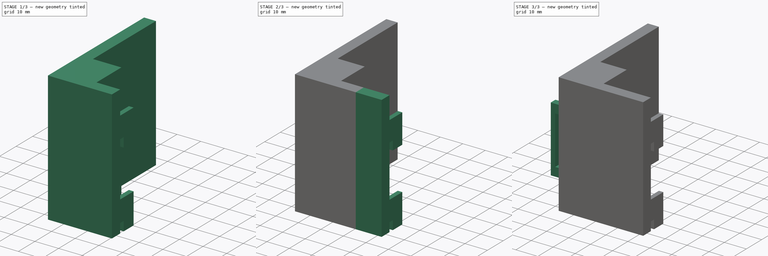
[diagram: build sequence overview — one tinted view per stage of 3, left to right]
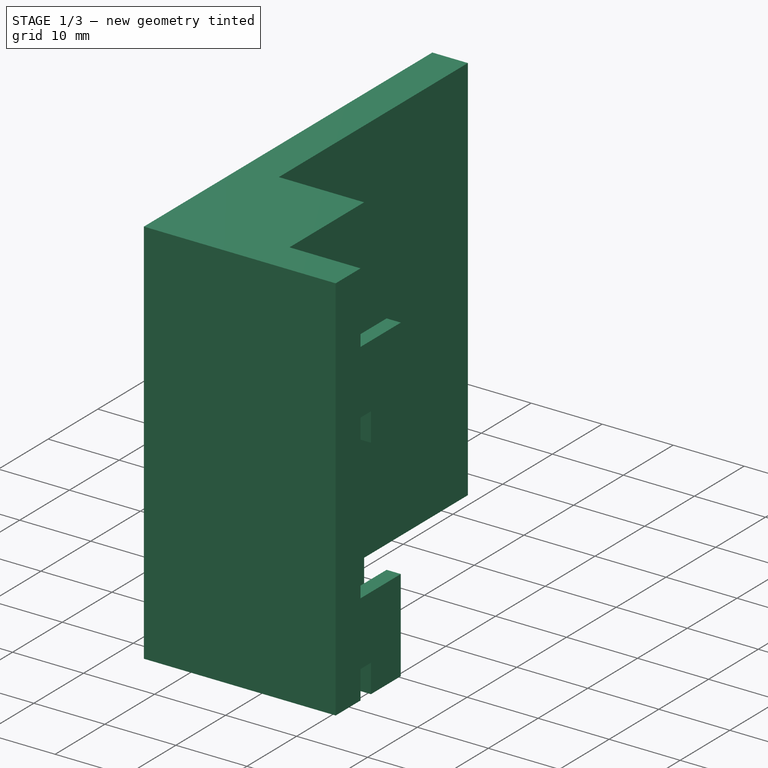
[diagram: stage 1 of 3 — iso view after this stage's code; geometry added in this stage tinted green]
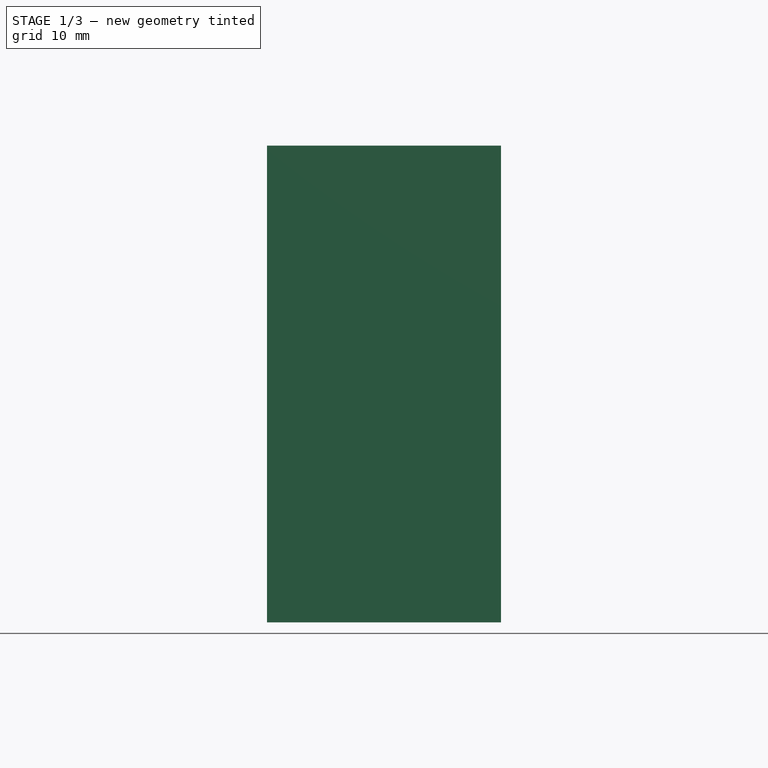
[diagram: stage 1 of 3 — front view after this stage's code; geometry added in this stage tinted green]
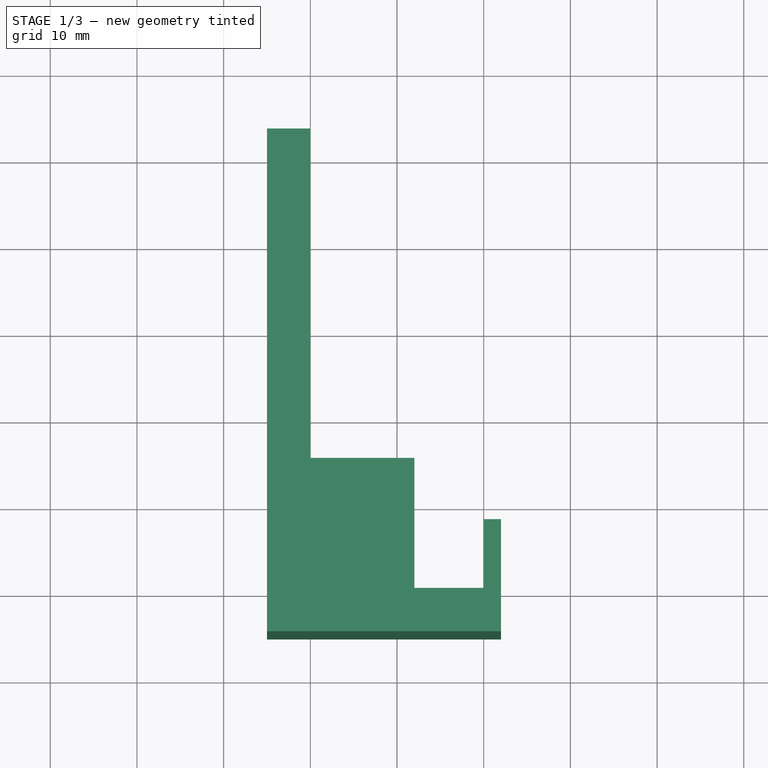
[diagram: stage 1 of 3 — top view after this stage's code; geometry added in this stage tinted green]
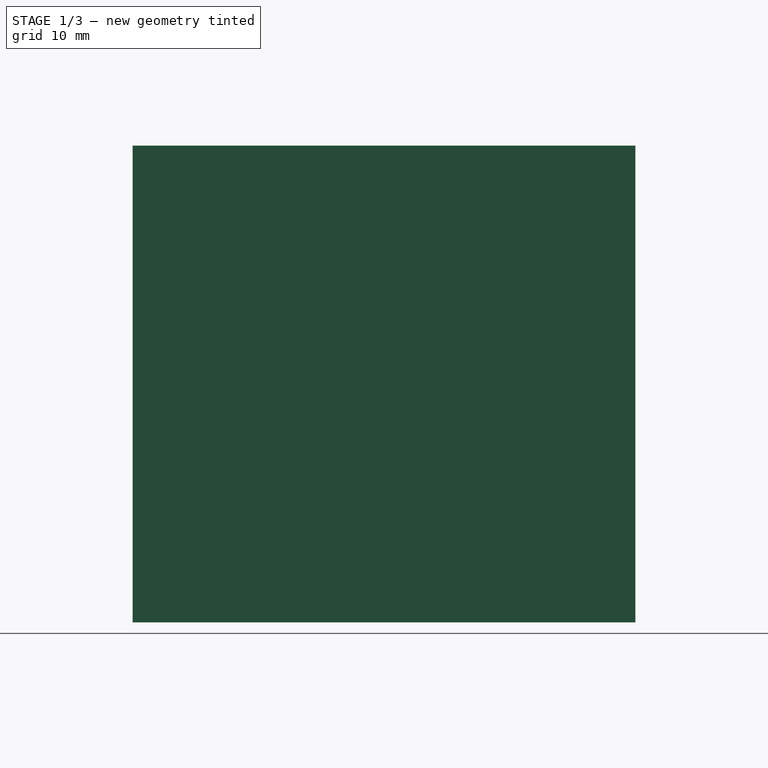
[diagram: stage 1 of 3 — right view after this stage's code; geometry added in this stage tinted green]
FCSTD DOCUMENT  (FreeCAD 0.19R24291 (Git))
Label: rack_rail_grabbers_velcro_tie
License: All rights reserved
LicenseURL: http://en.wikipedia.org/wiki/All_rights_reserved
objects: Sketcher::SketchObject×4, PartDesign::Pad×4, PartDesign::LinearPattern×2, PartDesign::Plane×1, PartDesign::MultiTransform×1, PartDesign::Body×1, App::Part×1
note: 17 computed .brp shape members not serialized (recipe doc carries the construction recipe); baked Part::Feature solids carry a one-line shape summary decoded from their .brp

FEATURE [Sketcher::SketchObject] Sketch004
  FullyConstrained = true
  MapMode = 5
  Support = -> [XY_Plane001]
  sketch-geometry (8):
    g0: LineSegment StartX=0 StartY=-5 StartZ=0 EndX=-25 EndY=-5 EndZ=0
    g1: LineSegment StartX=-25 StartY=-5 StartZ=0 EndX=-25 EndY=53 EndZ=0
    g2: LineSegment StartX=-25 StartY=53 StartZ=0 EndX=-20 EndY=53 EndZ=0
    g3: LineSegment StartX=-20 StartY=53 StartZ=0 EndX=-20 EndY=15 EndZ=0
    g4: LineSegment StartX=-20 StartY=15 StartZ=0 EndX=-8 EndY=15 EndZ=0
    g5: LineSegment StartX=-8 StartY=15 StartZ=0 EndX=-8 EndY=0 EndZ=0
    g6: LineSegment StartX=-8 StartY=0 StartZ=0 EndX=0 EndY=0 EndZ=0
    g7: LineSegment StartX=0 StartY=0 StartZ=0 EndX=0 EndY=-5 EndZ=0
  constraints (23):
    c: Horizontal(g0)
    c: Coincident(g0,g1)
    c: Vertical(g1)
    c: Coincident(g1,g2)
    c: Horizontal(g2)
    c: Coincident(g2,g3)
    c: Vertical(g3)
    c: Coincident(g3,g4)
    c: Horizontal(g4)
    c: Coincident(g4,g5)
    c: Vertical(g5)
    c: Coincident(g5,g6)
    c: Horizontal(g6)
    c: Coincident(g6,g7)
    c: Vertical(g7)
    c: Coincident(g7,g0)
    c: DistanceX(g2,g2) = 5
    c: DistanceX(g4,g4) = 12
    c: DistanceX(g6,g6) = 8
    c: Coincident(g6,g-1)
    c: DistanceY(g5,g5) = 15
    c: DistanceY(g3,g3) = 38
    c: DistanceY(g7,g7) = 5
FEATURE [PartDesign::Pad] Pad
  Direction = (1,1,1)
  Length = 55
  Length2 = 100
  Profile = -> Sketch004
  Reversed = true
  Type = 0
FEATURE [Sketcher::SketchObject] Sketch
  ExternalGeometry = -> [Sketch004]
  FullyConstrained = true
  MapMode = 5
  Placement = pos=(0,0,0) rot=(0.57735,0.57735,0.57735;2.0944rad)
  Support = -> [Pad]
  expr: Constraints[15] = 17mm - .Constraints.notch_depth
  sketch-geometry (17):
    g0: LineSegment StartX=-5 StartY=-55 StartZ=0 EndX=0 EndY=-55 EndZ=0
    g1: LineSegment StartX=-5 StartY=0 StartZ=0 EndX=-5 EndY=-55 EndZ=0
    g2: LineSegment StartX=0 StartY=-10 StartZ=0 EndX=8.1 EndY=-10 EndZ=0
    g3: LineSegment StartX=8.1 StartY=-10 StartZ=0 EndX=8.1 EndY=-23 EndZ=0
    g4: LineSegment StartX=8.1 StartY=-23 StartZ=0 EndX=2.1 EndY=-23 EndZ=0
    g5: LineSegment StartX=2.1 StartY=-23 StartZ=0 EndX=2.1 EndY=-19 EndZ=0
    g6: LineSegment StartX=2.1 StartY=-19 StartZ=0 EndX=0 EndY=-19 EndZ=0
    g7: LineSegment StartX=0 StartY=-42 StartZ=0 EndX=8.1 EndY=-42 EndZ=0
    g8: LineSegment StartX=8.1 StartY=-42 StartZ=0 EndX=8.1 EndY=-55 EndZ=0
    g9: LineSegment StartX=8.1 StartY=-55 StartZ=0 EndX=2.1 EndY=-55 EndZ=0
    g10: LineSegment StartX=2.1 StartY=-55 StartZ=0 EndX=2.1 EndY=-51 EndZ=0
    g11: LineSegment StartX=2.1 StartY=-51 StartZ=0 EndX=0 EndY=-51 EndZ=0
    g12: LineSegment StartX=0 StartY=-10 StartZ=0 EndX=0 EndY=-42 EndZ=0
    g13: LineSegment StartX=0 StartY=-19 StartZ=0 EndX=0 EndY=-42 EndZ=0
    g14: LineSegment StartX=0 StartY=-10 StartZ=0 EndX=0 EndY=0 EndZ=0
    g15: LineSegment StartX=-5 StartY=0 StartZ=0 EndX=0 EndY=0 EndZ=0
    g16: LineSegment StartX=0 StartY=-55 StartZ=0 EndX=0 EndY=-51 EndZ=0
  constraints (49):
    c: PointOnObject(g0,g-2)
    c: PointOnObject(g2,g-2)
    c: Coincident(g1,g0)
    c: Vertical(g1)
    c: Horizontal(g2)
    c: Coincident(g2,g3)
    c: Vertical(g3)
    c: Coincident(g3,g4)
    c: Horizontal(g4)
    c: Coincident(g4,g5)
    c: Vertical(g5)
    c: Coincident(g5,g6)
    c: Horizontal(g6)
    c: DistanceY(g5,g5) = 4  'notch_depth'
    c: DistanceX(g6,g6) = 2.1
    c: DistanceY(g3,g3) = 13
    c: DistanceX(g4,g4) = 6
    c: Vertical(g6,g2)
    c: Horizontal(g7)
    c: Coincident(g7,g8)
    c: Vertical(g8)
    c: Coincident(g8,g9)
    c: Horizontal(g9)
    c: Coincident(g9,g10)
    c: Vertical(g10)
    c: Coincident(g10,g11)
    c: Horizontal(g11)
    c: Equal(g5,g10) = 4  'notch_depth'
    c: Equal(g6,g11) = 3
    c: Equal(g3,g8) = 13
    c: Equal(g4,g9) = 6
    c: Vertical(g11,g7)
    c: Coincident(g2,g12)
    c: Coincident(g7,g12)
    c: Distance(g12) = 32
    c: Vertical(g12)
    c: Coincident(g13,g6)
    c: Coincident(g13,g7)
    c: Coincident(g14,g2)
    c: Coincident(g15,g1)
    c: Coincident(g15,g14)
    c: Horizontal(g0)
    c: Coincident(g14,g-1)
    c: Coincident(g16,g0)
    c: Coincident(g16,g11)
    c: Horizontal(g0,g9)
    c: DistanceY(g14,g14) = 10
    c: Coincident(g1,g-3)
    c: DistanceY(g1,g1) = 55  'height'
FEATURE [PartDesign::Pad] Pad003
  BaseFeature = -> Pad
  Direction = (1,1,1)
  Length = 2
  Length2 = 100
  Profile = -> Sketch
  Type = 0
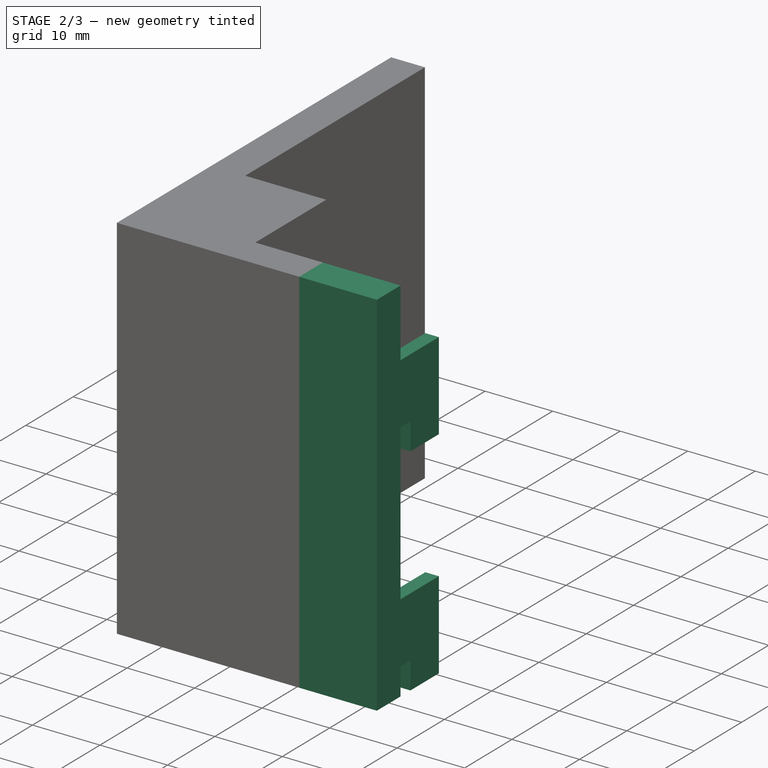
[diagram: stage 2 of 3 — iso view after this stage's code; geometry added in this stage tinted green]
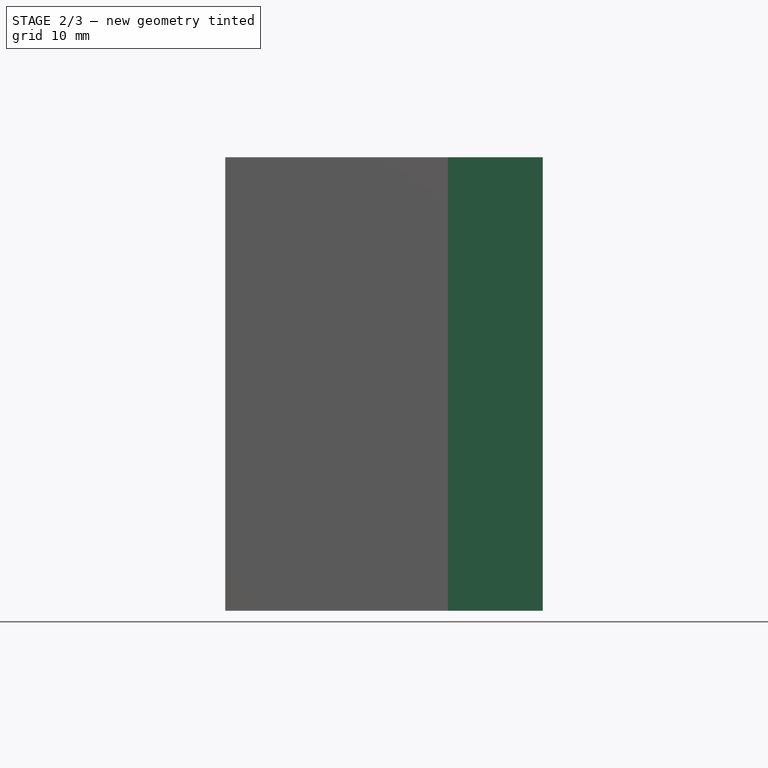
[diagram: stage 2 of 3 — front view after this stage's code; geometry added in this stage tinted green]
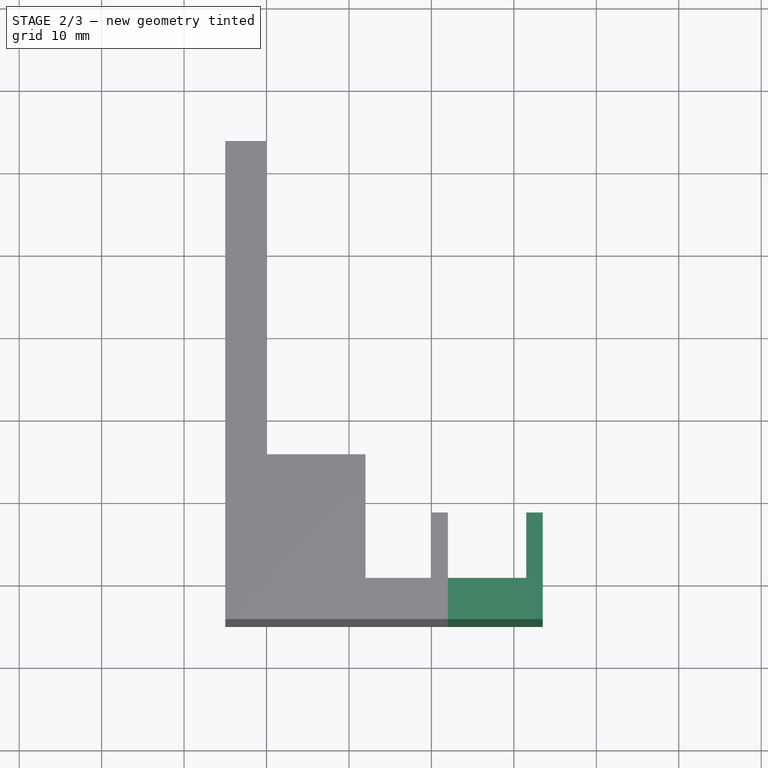
[diagram: stage 2 of 3 — top view after this stage's code; geometry added in this stage tinted green]
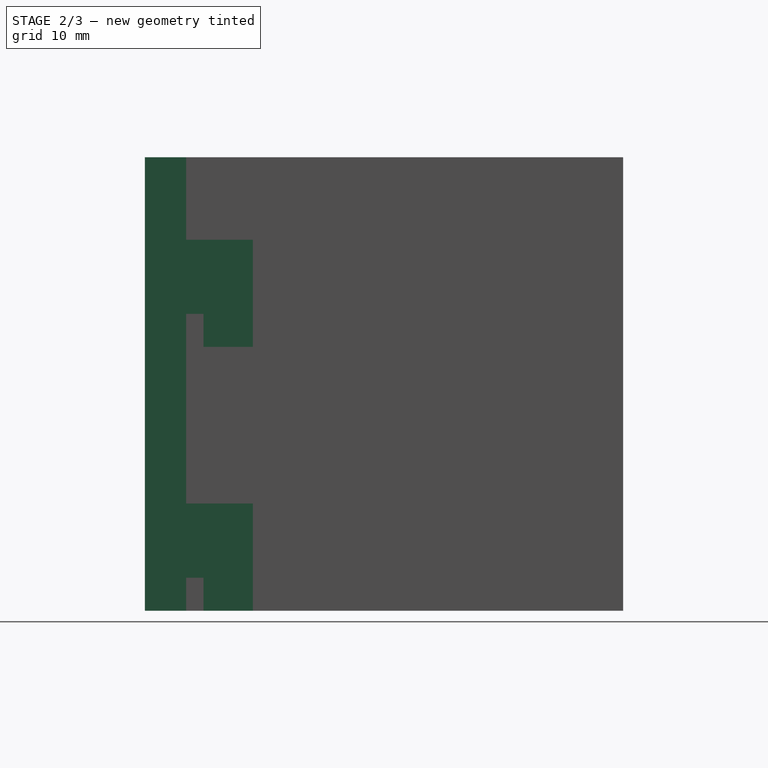
[diagram: stage 2 of 3 — right view after this stage's code; geometry added in this stage tinted green]
FEATURE [Sketcher::SketchObject] Sketch005
  ExternalGeometry = -> [Pad003]
  FullyConstrained = true
  MapMode = 5
  Placement = pos=(2,0,0) rot=(0.57735,0.57735,0.57735;2.0944rad)
  Support = -> [Pad003]
  sketch-geometry (4):
    g0: LineSegment StartX=0 StartY=0 StartZ=0 EndX=-5 EndY=0 EndZ=0
    g1: LineSegment StartX=-5 StartY=0 StartZ=0 EndX=-5 EndY=-55 EndZ=0
    g2: LineSegment StartX=-5 StartY=-55 StartZ=0 EndX=0 EndY=-55 EndZ=0
    g3: LineSegment StartX=0 StartY=-55 StartZ=0 EndX=0 EndY=0 EndZ=0
  constraints (10):
    c: Coincident(g0,g1)
    c: Coincident(g1,g2)
    c: Coincident(g2,g3)
    c: Coincident(g3,g0)
    c: Horizontal(g0)
    c: Horizontal(g2)
    c: Vertical(g1)
    c: Vertical(g3)
    c: Coincident(g0,g-1)
    c: Coincident(g1,g-4)
FEATURE [PartDesign::Pad] Pad004
  BaseFeature = -> Pad003
  Direction = (1,1,1)
  Length = 9.5
  Length2 = 100
  Profile = -> Sketch005
  Type = 0
FEATURE [PartDesign::LinearPattern] LinearPattern
  BaseFeature = -> Pad004
  Direction = -> X_Axis001
  Length = 11.5
  Occurrences = 2
  Originals = -> [Pad003]
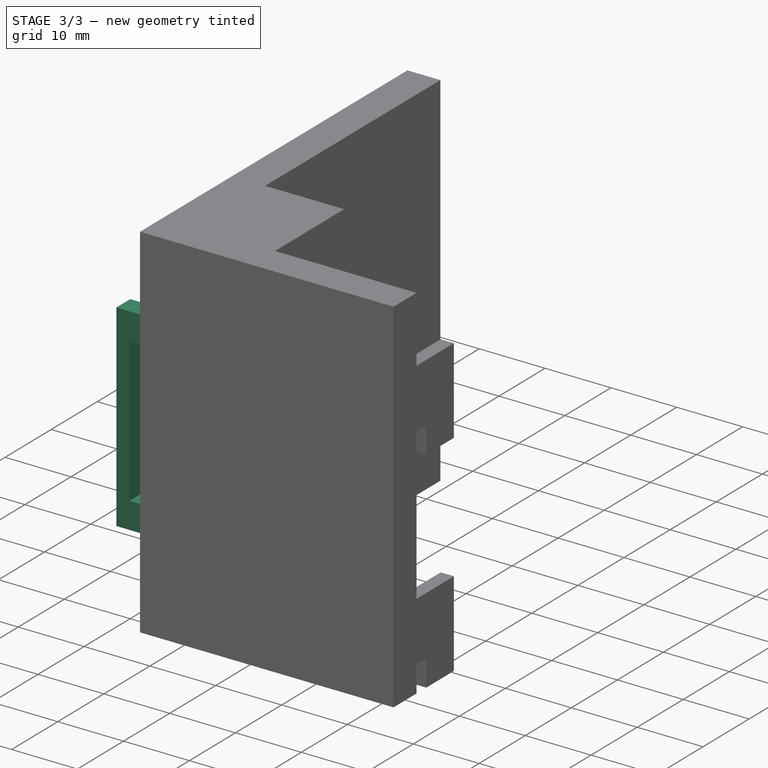
[diagram: stage 3 of 3 — iso view after this stage's code; geometry added in this stage tinted green]
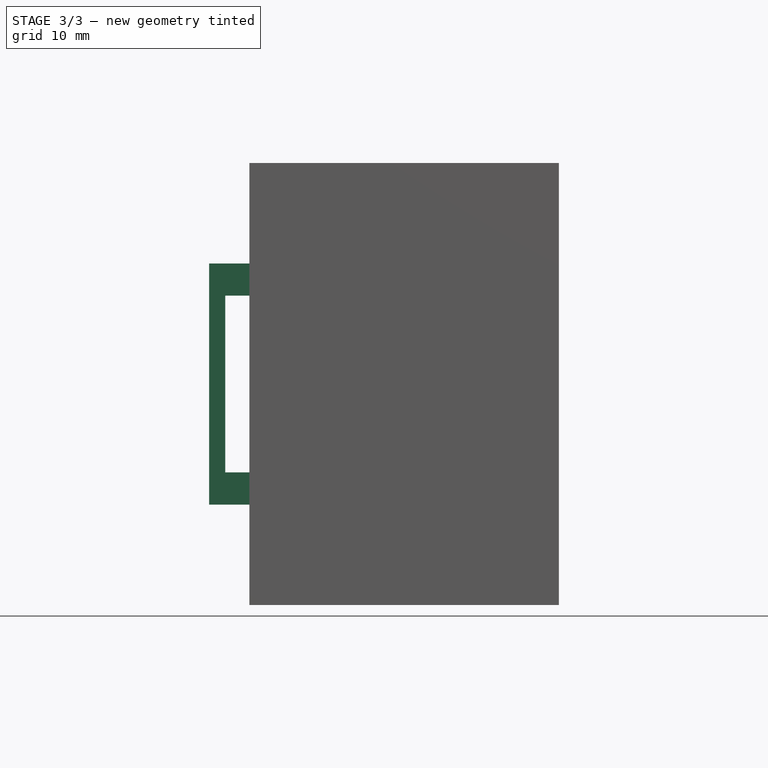
[diagram: stage 3 of 3 — front view after this stage's code; geometry added in this stage tinted green]
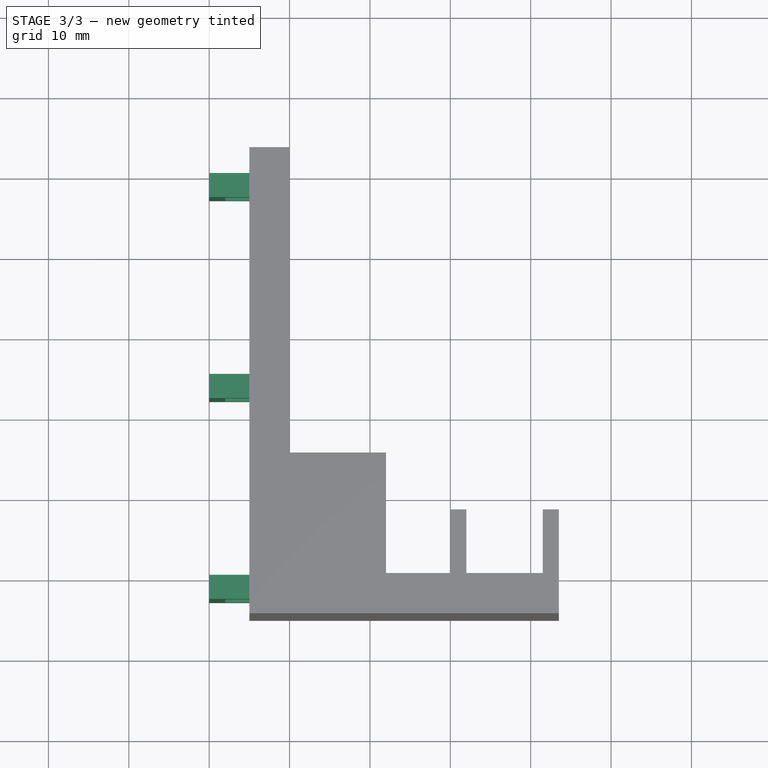
[diagram: stage 3 of 3 — top view after this stage's code; geometry added in this stage tinted green]
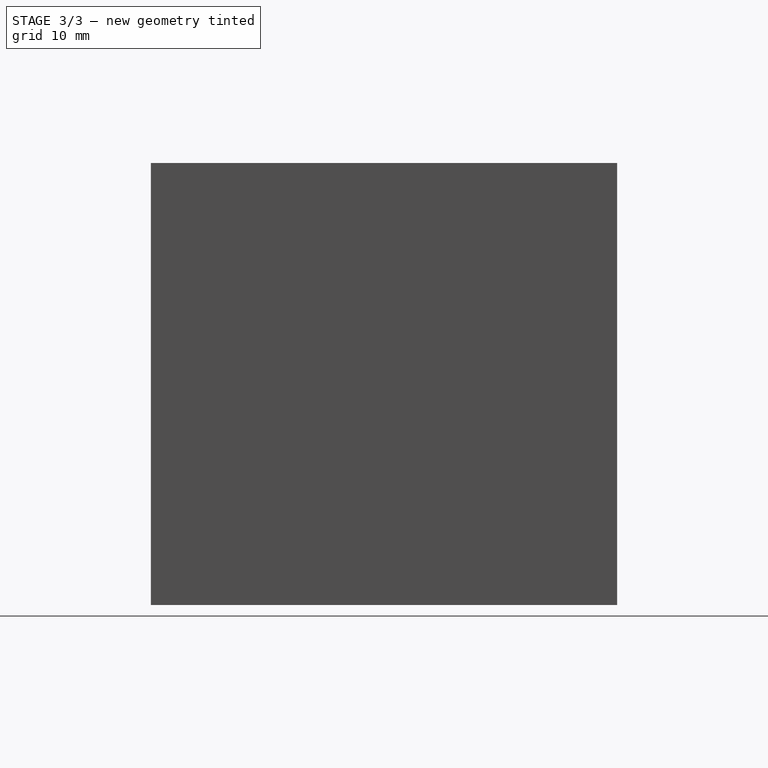
[diagram: stage 3 of 3 — right view after this stage's code; geometry added in this stage tinted green]
FEATURE [PartDesign::Plane] DatumPlane
  Length = 62.6491
  MapMode = 5
  Placement = pos=(0,0,0) rot=(1,0,0;1.5708rad)
  ResizeMode = 0
  Support = -> [XZ_Plane001]
  Width = 92.6491
FEATURE [Sketcher::SketchObject] Sketch006
  ExternalGeometry = -> [LinearPattern]
  FullyConstrained = true
  MapMode = 5
  Placement = pos=(0,0,0) rot=(1,0,0;1.5708rad)
  Support = -> [DatumPlane]
  sketch-geometry (9):
    g0: LineSegment StartX=-25 StartY=-12.5 StartZ=0 EndX=-30 EndY=-12.5 EndZ=0
    g1: LineSegment StartX=-30 StartY=-12.5 StartZ=0 EndX=-30 EndY=-42.5 EndZ=0
    g2: LineSegment StartX=-30 StartY=-42.5 StartZ=0 EndX=-25 EndY=-42.5 EndZ=0
    g3: LineSegment StartX=-25 StartY=-42.5 StartZ=0 EndX=-25 EndY=-38.5 EndZ=0
    g4: LineSegment StartX=-25 StartY=-38.5 StartZ=0 EndX=-28 EndY=-38.5 EndZ=0
    g5: LineSegment StartX=-28 StartY=-38.5 StartZ=0 EndX=-28 EndY=-16.5 EndZ=0
    g6: LineSegment StartX=-28 StartY=-16.5 StartZ=0 EndX=-25 EndY=-16.5 EndZ=0
    g7: LineSegment StartX=-25 StartY=-16.5 StartZ=0 EndX=-25 EndY=-12.5 EndZ=0
    g8: GeomPoint X=-25 Y=-27.5 Z=0
  constraints (24):
    c: PointOnObject(g0,g-3)
    c: Horizontal(g0)
    c: Coincident(g0,g1)
    c: Vertical(g1)
    c: Coincident(g1,g2)
    c: PointOnObject(g2,g-3)
    c: Horizontal(g2)
    c: Coincident(g2,g3)
    c: PointOnObject(g3,g-3)
    c: Coincident(g3,g4)
    c: Horizontal(g4)
    c: Coincident(g4,g5)
    c: Vertical(g5)
    c: Coincident(g5,g6)
    c: Horizontal(g6)
    c: Coincident(g6,g7)
    c: Coincident(g7,g0)
    c: Equal(g3,g7)
    c: DistanceY(g5,g5) = 22
    c: DistanceY(g7,g7) = 4
    c: DistanceX(g1,g4) = 2
    c: Symmetric(g3,g6,g8)
    c: Symmetric(g-3,g-3,g8)
    c: DistanceX(g4,g4) = 3
FEATURE [PartDesign::Pad] Pad005
  BaseFeature = -> LinearPattern
  Direction = (1,1,1)
  Length = 3
  Length2 = 100
  Profile = -> Sketch006
  Type = 0
FEATURE [PartDesign::LinearPattern] LinearPattern001
  Direction = -> Y_Axis001
  Length = 50
  Occurrences = 3
FEATURE [PartDesign::MultiTransform] MultiTransform
  BaseFeature = -> Pad005
  Originals = -> [Pad005]
  Transformations = -> [LinearPattern001]
FEATURE [PartDesign::Body] Body
  Group = -> [Sketch004,Pad,Sketch,Pad003,Sketch005,Pad004,LinearPattern,DatumPlane,Sketch006,Pad005,MultiTransform,LinearPattern001]
  Origin = -> Origin001
  Tip = -> MultiTransform
FEATURE [App::Part] Part
  Group = -> [Body]
  Origin = -> Origin
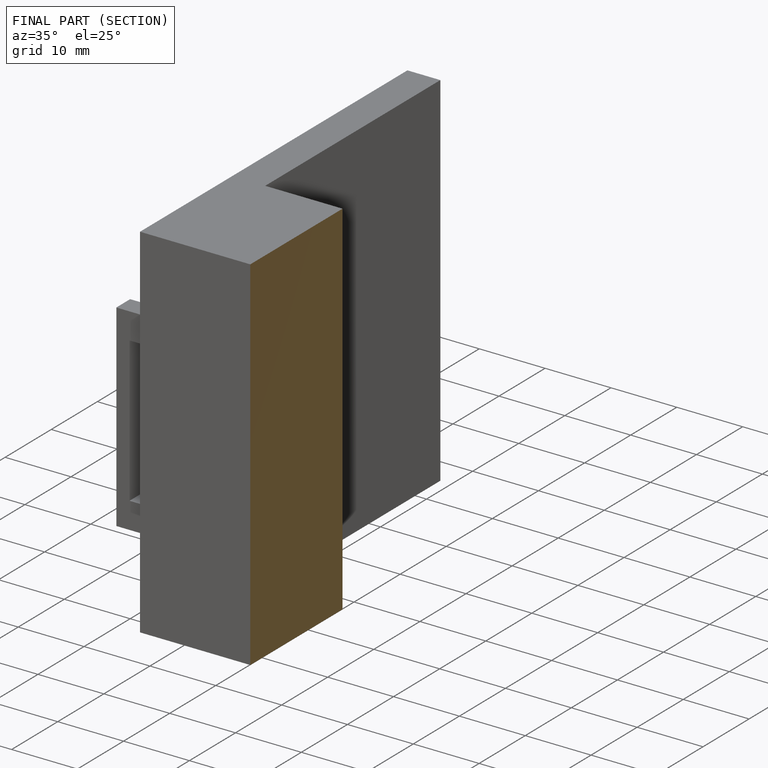
[diagram: finished part — half-section view (interior)]
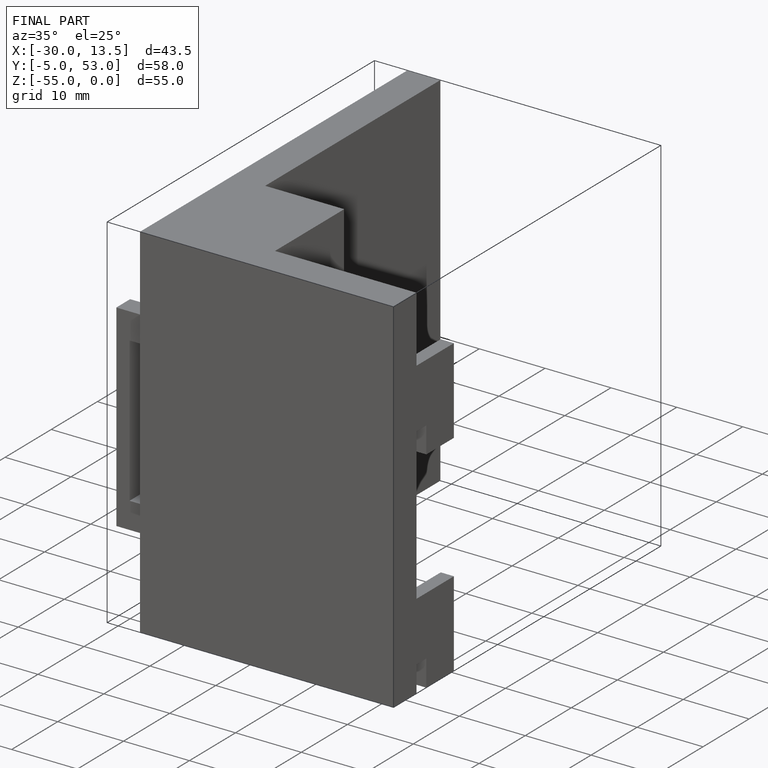
[diagram: finished part — iso view with bounding-box wireframe]
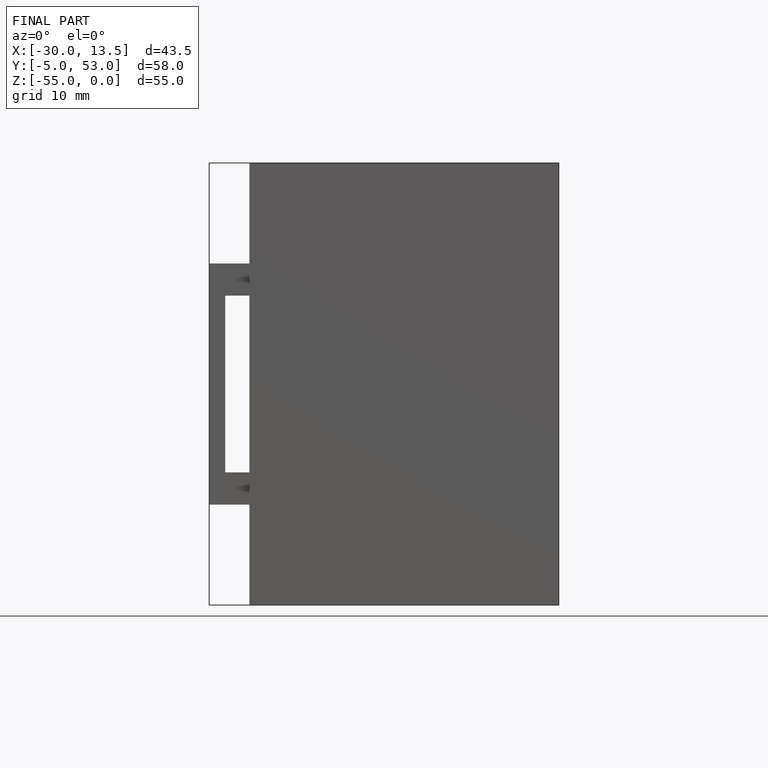
[diagram: finished part — front view with bounding-box wireframe]
